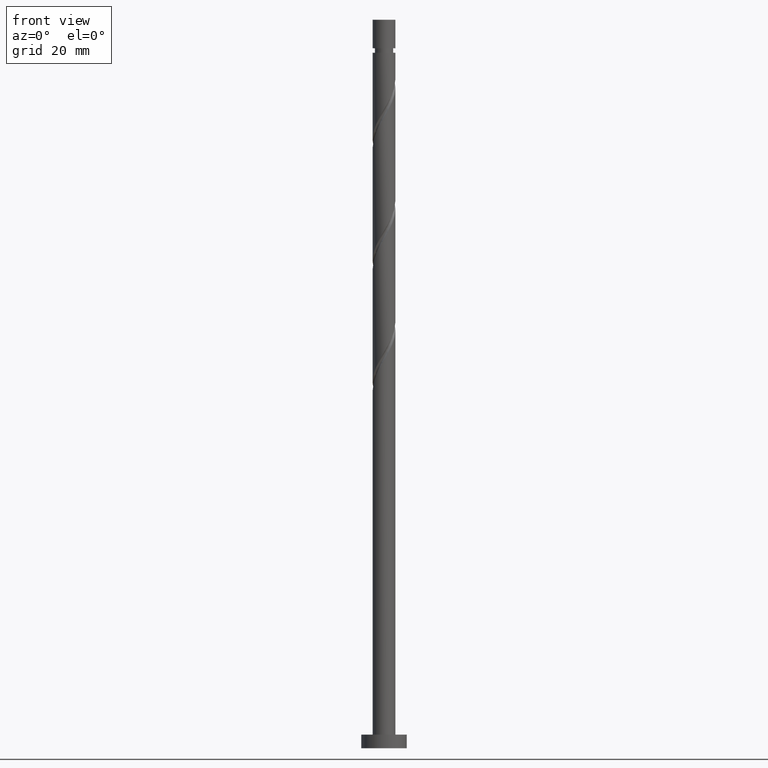
[diagram: clean part render]
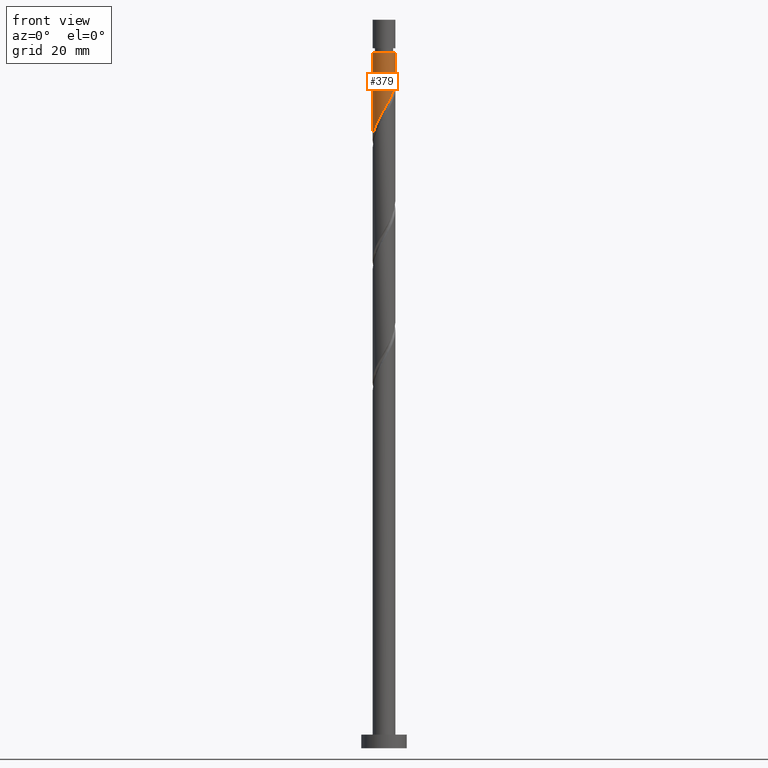
[diagram: same view with one face highlighted and labeled with its STEP entity id]
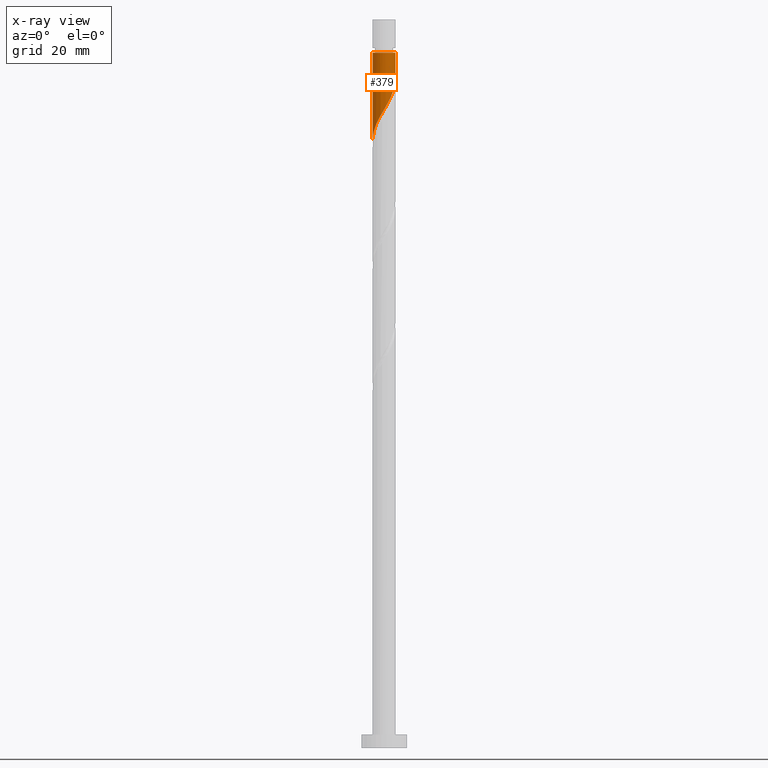
[diagram: x-ray of the same camera — body ghosted, the highlighted face saturated]
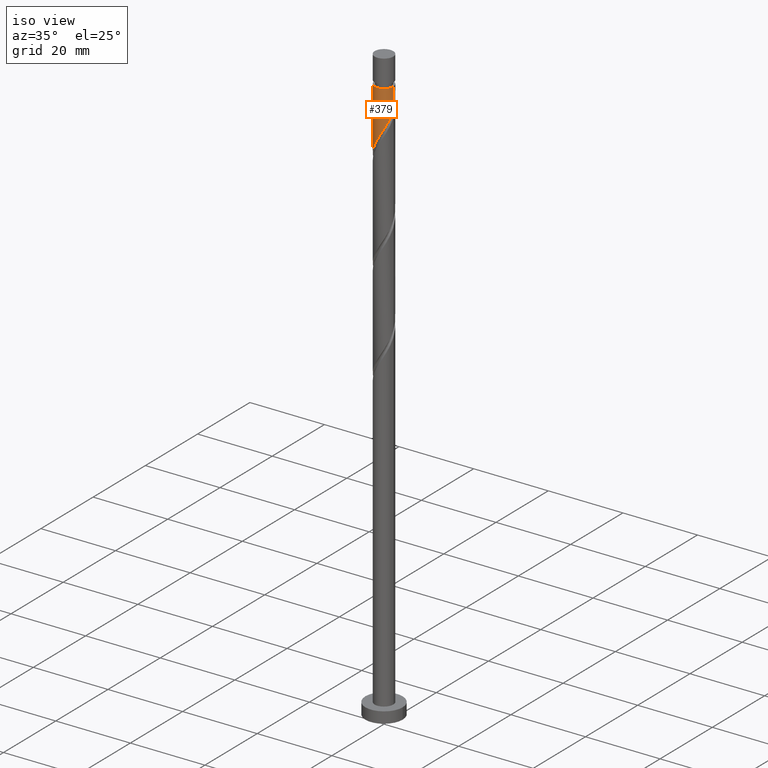
[diagram: same view with one face highlighted and labeled with its STEP entity id]
A machine part, front view. The second image highlights one B-rep face of the part: STEP entity #379.
The next image is the same camera in x-ray: the body ghosted, the highlighted face saturated — about 0% of this face is hidden behind the body in this view.
A second angle (iso view) of the same face is appended — the face is thin or edge-on in the first view.
In plain terms, the highlighted cylindrical surface (edge-blend (fillet) strip) has radius 2.5 mm, axis along (-0, -0, -1).
Its self-contained STEP definition (entity closure, byte-faithful):
#11 = ORIENTED_EDGE ( 'NONE', *, *, #1154, .F. ) ;
#20 = CARTESIAN_POINT ( 'NONE',  ( -1.743088351060508412, -1.792105744758706987, 136.9820234059469897 ) ) ;
#23 = DIRECTION ( 'NONE',  ( -0.000000000000000000, -0.000000000000000000, -1.000000000000000000 ) ) ;
#26 = CARTESIAN_POINT ( 'NONE',  ( 0.000000000000000000, 0.000000000000000000, 152.7395991635227688 ) ) ;
#36 = CARTESIAN_POINT ( 'NONE',  ( -2.000754257700505967, -1.541487475360715065, 136.3759627998863664 ) ) ;
#118 = DIRECTION ( 'NONE',  ( -0.000000000000000000, -0.000000000000000000, -1.000000000000000000 ) ) ;
#137 = CARTESIAN_POINT ( 'NONE',  ( 2.500000000000000444, -0.07193881630955824280, 146.8002889714387607 ) ) ;
#164 = CARTESIAN_POINT ( 'NONE',  ( 1.525797355502942043, -1.980389464206530725, 143.0426294665530520 ) ) ;
#177 = CARTESIAN_POINT ( 'NONE',  ( -2.435264748179750693, -0.5652305779706341404, 134.5577809817045534 ) ) ;
#228 = CARTESIAN_POINT ( 'NONE',  ( -2.499999999999993339, 0.000000000000000000, 152.7395991635227688 ) ) ;
#248 = LINE ( 'NONE', #368, #349 ) ;
#250 = DIRECTION ( 'NONE',  ( -0.000000000000000000, -0.000000000000000000, -1.000000000000000000 ) ) ;
#269 = CARTESIAN_POINT ( 'NONE',  ( 2.021932029057389890, -1.470302985738608958, 144.2547506786742417 ) ) ;
#288 = CARTESIAN_POINT ( 'NONE',  ( 2.500000000000000444, 3.440068761804176987E-16, 146.9223869761569858 ) ) ;
#292 = AXIS2_PLACEMENT_3D ( 'NONE', #750, #23, #375 ) ;
#349 = VECTOR ( 'NONE', #118, 1000.000000000000000 ) ;
#368 = CARTESIAN_POINT ( 'NONE',  ( 2.500000000000000000, 3.061616997868383141E-16, 160.0000000000000000 ) ) ;
#370 = LINE ( 'NONE', #1550, #1648 ) ;
#375 = DIRECTION ( 'NONE',  ( -1.000000000000000000, 0.000000000000000000, 0.000000000000000000 ) ) ;
#379 = ADVANCED_FACE ( 'NONE', ( #765 ), #900, .T. ) ;
#394 = CARTESIAN_POINT ( 'NONE',  ( -1.485422444420509747, -2.042724014156697798, 137.5880840120076130 ) ) ;
#415 = CARTESIAN_POINT ( 'NONE',  ( -2.177375558832922664, -1.228428132125366723, 135.7699021938257715 ) ) ;
#439 = CARTESIAN_POINT ( 'NONE',  ( 2.499999999999993339, 3.061616997868378704E-16, 152.7395991635227688 ) ) ;
#460 = EDGE_CURVE ( 'NONE', #1656, #569, #370, .T. ) ;
#531 = VERTEX_POINT ( 'NONE', #439 ) ;
#533 = CARTESIAN_POINT ( 'NONE',  ( -1.167586491630751899, -2.210597608014944093, 138.1941446180682078 ) ) ;
#543 = CARTESIAN_POINT ( 'NONE',  ( 0.2129030368922521788, -2.490917962696093113, 140.6183870423106725 ) ) ;
#549 = VERTEX_POINT ( 'NONE', #826 ) ;
#569 = VERTEX_POINT ( 'NONE', #703 ) ;
#652 = CARTESIAN_POINT ( 'NONE',  ( 2.495863270706175197, -0.1437585960555969600, 146.6789931029166780 ) ) ;
#676 = EDGE_LOOP ( 'NONE', ( #958, #841, #1333, #11 ) ) ;
#682 = DIRECTION ( 'NONE',  ( -0.000000000000000000, -0.000000000000000000, -1.000000000000000000 ) ) ;
#703 = CARTESIAN_POINT ( 'NONE',  ( -2.500000000000000888, 6.094904436674791625E-15, 133.5890536428236715 ) ) ;
#750 = CARTESIAN_POINT ( 'NONE',  ( 0.000000000000000000, 0.000000000000000000, 160.0000000000000000 ) ) ;
#765 = FACE_OUTER_BOUND ( 'NONE', #676, .T. ) ;
#787 = CARTESIAN_POINT ( 'NONE',  ( 1.810534374112177547, -1.761012923450274714, 143.6486900726136469 ) ) ;
#815 = CARTESIAN_POINT ( 'NONE',  ( 2.233329684002602900, -1.179593048026942315, 144.8608112847348366 ) ) ;
#826 = CARTESIAN_POINT ( 'NONE',  ( 2.500000000000000444, 3.440068761804176987E-16, 146.9223869761569858 ) ) ;
#841 = ORIENTED_EDGE ( 'NONE', *, *, #1007, .T. ) ;
#862 = CIRCLE ( 'NONE', #1244, 2.499999999999993339 ) ;
#900 = CYLINDRICAL_SURFACE ( 'NONE', #292, 2.500000000000000000 ) ;
#923 = CARTESIAN_POINT ( 'NONE',  ( 2.475193905018187035, -0.5026095591624447634, 146.0729324968561400 ) ) ;
#954 = CARTESIAN_POINT ( 'NONE',  ( -2.500000000000000444, -0.2863223184628038154, 134.0750135957949567 ) ) ;
#958 = ORIENTED_EDGE ( 'NONE', *, *, #1555, .F. ) ;
#1007 = EDGE_CURVE ( 'NONE', #531, #1656, #862, .T. ) ;
#1075 = CARTESIAN_POINT ( 'NONE',  ( -0.4974937185533109263, -2.449999999999999289, 139.4062658301894544 ) ) ;
#1154 = EDGE_CURVE ( 'NONE', #549, #569, #1526, .T. ) ;
#1167 = CARTESIAN_POINT ( 'NONE',  ( -0.8497505388409954952, -2.378471201873189500, 138.8002052241288027 ) ) ;
#1173 = CARTESIAN_POINT ( 'NONE',  ( -2.500000000000000888, 6.094904436674791625E-15, 133.5890536428236715 ) ) ;
#1182 = CARTESIAN_POINT ( 'NONE',  ( 0.9060516544719198206, -2.330036566114079832, 141.8305082544318623 ) ) ;
#1244 = AXIS2_PLACEMENT_3D ( 'NONE', #26, #682, #1425 ) ;
#1327 = CARTESIAN_POINT ( 'NONE',  ( -2.353996859965338917, -0.9153687888900170488, 135.1638415877651767 ) ) ;
#1333 = ORIENTED_EDGE ( 'NONE', *, *, #460, .T. ) ;
#1425 = DIRECTION ( 'NONE',  ( -1.000000000000000000, 0.000000000000000000, 0.000000000000000000 ) ) ;
#1442 = CARTESIAN_POINT ( 'NONE',  ( 0.5710429720501321027, -2.460307127265375371, 141.2244476483712106 ) ) ;
#1526 =( BOUNDED_CURVE ( )  B_SPLINE_CURVE ( 2, ( #288, #137, #652, #923, #1573, #815, #269, #787, #164, #1551, #1182, #1442, #543, #1583, #1075, #1167, #533, #394, #20, #36, #415, #1327, #177, #954, #1173 ),
 .UNSPECIFIED., .F., .T. ) 
 B_SPLINE_CURVE_WITH_KNOTS ( ( 3, 2, 2, 2, 2, 2, 2, 2, 2, 2, 2, 2, 3 ),
 ( 0.3045252162417513841, 0.3068181818181818232, 0.3181818181818181768, 0.3295454545454545303, 0.3409090909090908839, 0.3522727272727272929, 0.3636363636363636465, 0.3750000000000000000, 0.3863636363636363535, 0.3977272727272727071, 0.4090909090909091161, 0.4204545454545454697, 0.4295252162417514397 ),
 .UNSPECIFIED. ) 
 CURVE ( )  GEOMETRIC_REPRESENTATION_ITEM ( )  RATIONAL_B_SPLINE_CURVE ( ( 0.9061101570135600136, 0.9072237824201421219, 0.9090909090909196077, 0.8998376744372220681, 0.9090909090909196077, 0.8998376744372220681, 0.9090909090909196077, 0.8998376744372220681, 0.9090909090909196077, 0.8998376744372220681, 0.9090909090909196077, 0.8998376744372220681, 0.9090909090909196077, 0.8998376744372220681, 0.9090909090909196077, 0.8998376744372220681, 0.9090909090909196077, 0.8998376744372220681, 0.9090909090909196077, 0.8998376744372220681, 0.9090909090909196077, 0.8998376744372220681, 0.9090909090909196077, 0.9017048011079994430, 0.9061101570135601246 ) ) 
 REPRESENTATION_ITEM ( '' )  );
#1550 = CARTESIAN_POINT ( 'NONE',  ( -2.500000000000000000, 0.000000000000000000, 160.0000000000000000 ) ) ;
#1551 = CARTESIAN_POINT ( 'NONE',  ( 1.241060336893708538, -2.199766004962784738, 142.4365688604924287 ) ) ;
#1555 = EDGE_CURVE ( 'NONE', #531, #549, #248, .T. ) ;
#1573 = CARTESIAN_POINT ( 'NONE',  ( 2.354261794510395411, -0.8411013035946938166, 145.4668718907954883 ) ) ;
#1583 = CARTESIAN_POINT ( 'NONE',  ( -0.1452368982656266350, -2.521528798126810411, 140.0123264362500493 ) ) ;
#1648 = VECTOR ( 'NONE', #250, 1000.000000000000000 ) ;
#1656 = VERTEX_POINT ( 'NONE', #228 ) ;